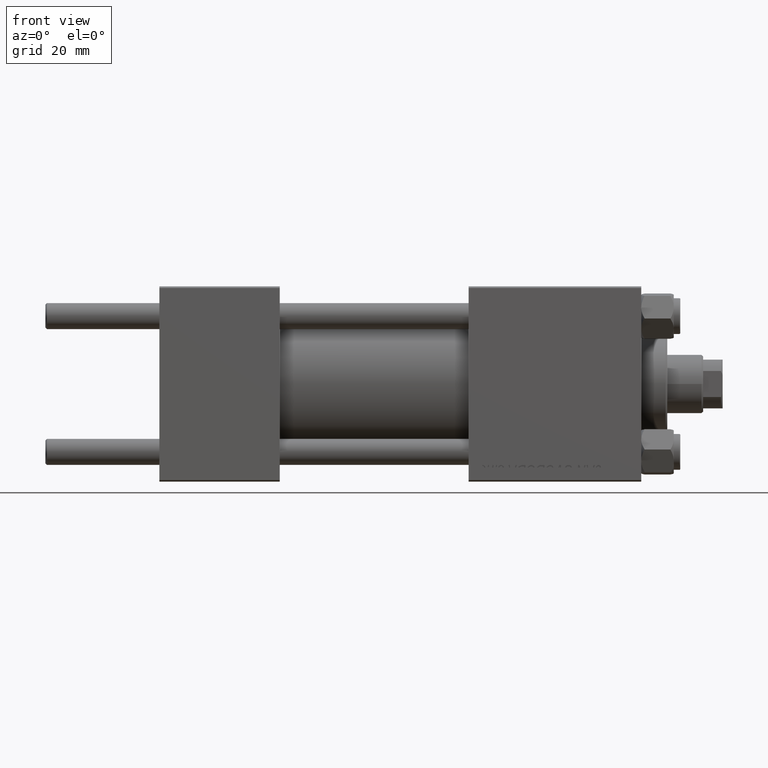
[diagram: clean part render]
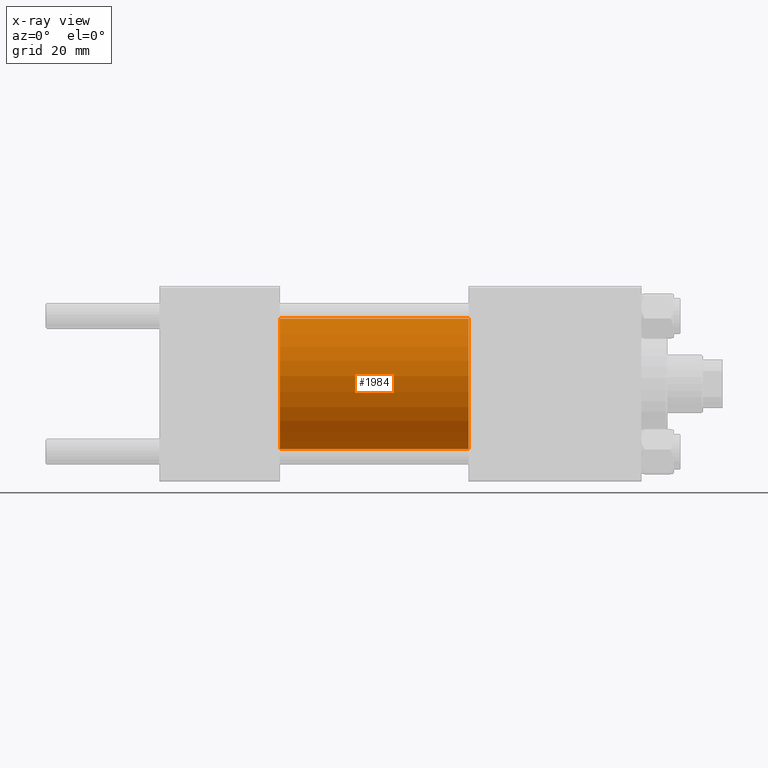
[diagram: x-ray — body ghosted, one internal face saturated and labeled with its STEP entity id]
A machine part, front view, then the same camera in x-ray: the body is ghosted and one INTERNAL B-rep face — a face not visible from any outside direction — is saturated and labeled: STEP entity #1984.
In plain terms, the highlighted cylindrical surface (partial cylindrical patch) has radius 20 mm, axis along (-1, -0, -0).
Its self-contained STEP definition (entity closure, byte-faithful):
#77 = DIRECTION ( 'NONE',  ( 0.000000000000000000, 0.000000000000000000, 1.000000000000000000 ) ) ;
#290 = CARTESIAN_POINT ( 'NONE',  ( 95.00000000000000000, 2.449293598294706119E-15, -20.00000000000000000 ) ) ;
#1094 = EDGE_CURVE ( 'NONE', #18065, #32320, #27896, .T. ) ;
#1984 = ADVANCED_FACE ( 'NONE', ( #8416 ), #43101, .F. ) ;
#3037 = AXIS2_PLACEMENT_3D ( 'NONE', #22367, #15278, #25002 ) ;
#4119 = EDGE_CURVE ( 'NONE', #32320, #23741, #11219, .T. ) ;
#4579 = ORIENTED_EDGE ( 'NONE', *, *, #20418, .T. ) ;
#6466 = DIRECTION ( 'NONE',  ( 0.000000000000000000, 0.000000000000000000, -1.000000000000000000 ) ) ;
#8416 = FACE_OUTER_BOUND ( 'NONE', #9977, .T. ) ;
#8655 = DIRECTION ( 'NONE',  ( -1.000000000000000000, -0.000000000000000000, -0.000000000000000000 ) ) ;
#9977 = EDGE_LOOP ( 'NONE', ( #26719, #4579, #26749, #39171 ) ) ;
#11219 = CIRCLE ( 'NONE', #43575, 20.00000000000000000 ) ;
#12698 = CIRCLE ( 'NONE', #3037, 20.00000000000000000 ) ;
#13076 = CARTESIAN_POINT ( 'NONE',  ( 37.00000000000000000, 2.449293598294706119E-15, -20.00000000000000000 ) ) ;
#15278 = DIRECTION ( 'NONE',  ( 1.000000000000000000, 0.000000000000000000, 0.000000000000000000 ) ) ;
#15510 = DIRECTION ( 'NONE',  ( -1.000000000000000000, -0.000000000000000000, -0.000000000000000000 ) ) ;
#18065 = VERTEX_POINT ( 'NONE', #32338 ) ;
#20418 = EDGE_CURVE ( 'NONE', #24265, #23741, #34952, .T. ) ;
#22148 = CARTESIAN_POINT ( 'NONE',  ( 37.00000000000000000, 0.000000000000000000, 20.00000000000000000 ) ) ;
#22367 = CARTESIAN_POINT ( 'NONE',  ( 95.00000000000000000, 0.000000000000000000, 0.000000000000000000 ) ) ;
#23741 = VERTEX_POINT ( 'NONE', #13076 ) ;
#24202 = AXIS2_PLACEMENT_3D ( 'NONE', #30442, #15510, #77 ) ;
#24265 = VERTEX_POINT ( 'NONE', #42048 ) ;
#25002 = DIRECTION ( 'NONE',  ( 0.000000000000000000, 0.000000000000000000, -1.000000000000000000 ) ) ;
#25692 = CARTESIAN_POINT ( 'NONE',  ( 37.00000000000000000, 0.000000000000000000, 0.000000000000000000 ) ) ;
#26719 = ORIENTED_EDGE ( 'NONE', *, *, #47167, .T. ) ;
#26749 = ORIENTED_EDGE ( 'NONE', *, *, #4119, .F. ) ;
#27896 = LINE ( 'NONE', #35737, #40322 ) ;
#30442 = CARTESIAN_POINT ( 'NONE',  ( 95.00000000000000000, 0.000000000000000000, 0.000000000000000000 ) ) ;
#31148 = VECTOR ( 'NONE', #49877, 1000.000000000000000 ) ;
#32320 = VERTEX_POINT ( 'NONE', #22148 ) ;
#32338 = CARTESIAN_POINT ( 'NONE',  ( 95.00000000000000000, 0.000000000000000000, 20.00000000000000000 ) ) ;
#34952 = LINE ( 'NONE', #290, #31148 ) ;
#35737 = CARTESIAN_POINT ( 'NONE',  ( 95.00000000000000000, 0.000000000000000000, 20.00000000000000000 ) ) ;
#39171 = ORIENTED_EDGE ( 'NONE', *, *, #1094, .F. ) ;
#40322 = VECTOR ( 'NONE', #8655, 1000.000000000000000 ) ;
#41141 = DIRECTION ( 'NONE',  ( 1.000000000000000000, 0.000000000000000000, 0.000000000000000000 ) ) ;
#42048 = CARTESIAN_POINT ( 'NONE',  ( 95.00000000000000000, 2.449293598294706119E-15, -20.00000000000000000 ) ) ;
#43101 = CYLINDRICAL_SURFACE ( 'NONE', #24202, 20.00000000000000000 ) ;
#43575 = AXIS2_PLACEMENT_3D ( 'NONE', #25692, #41141, #6466 ) ;
#47167 = EDGE_CURVE ( 'NONE', #18065, #24265, #12698, .T. ) ;
#49877 = DIRECTION ( 'NONE',  ( -1.000000000000000000, -0.000000000000000000, -0.000000000000000000 ) ) ;